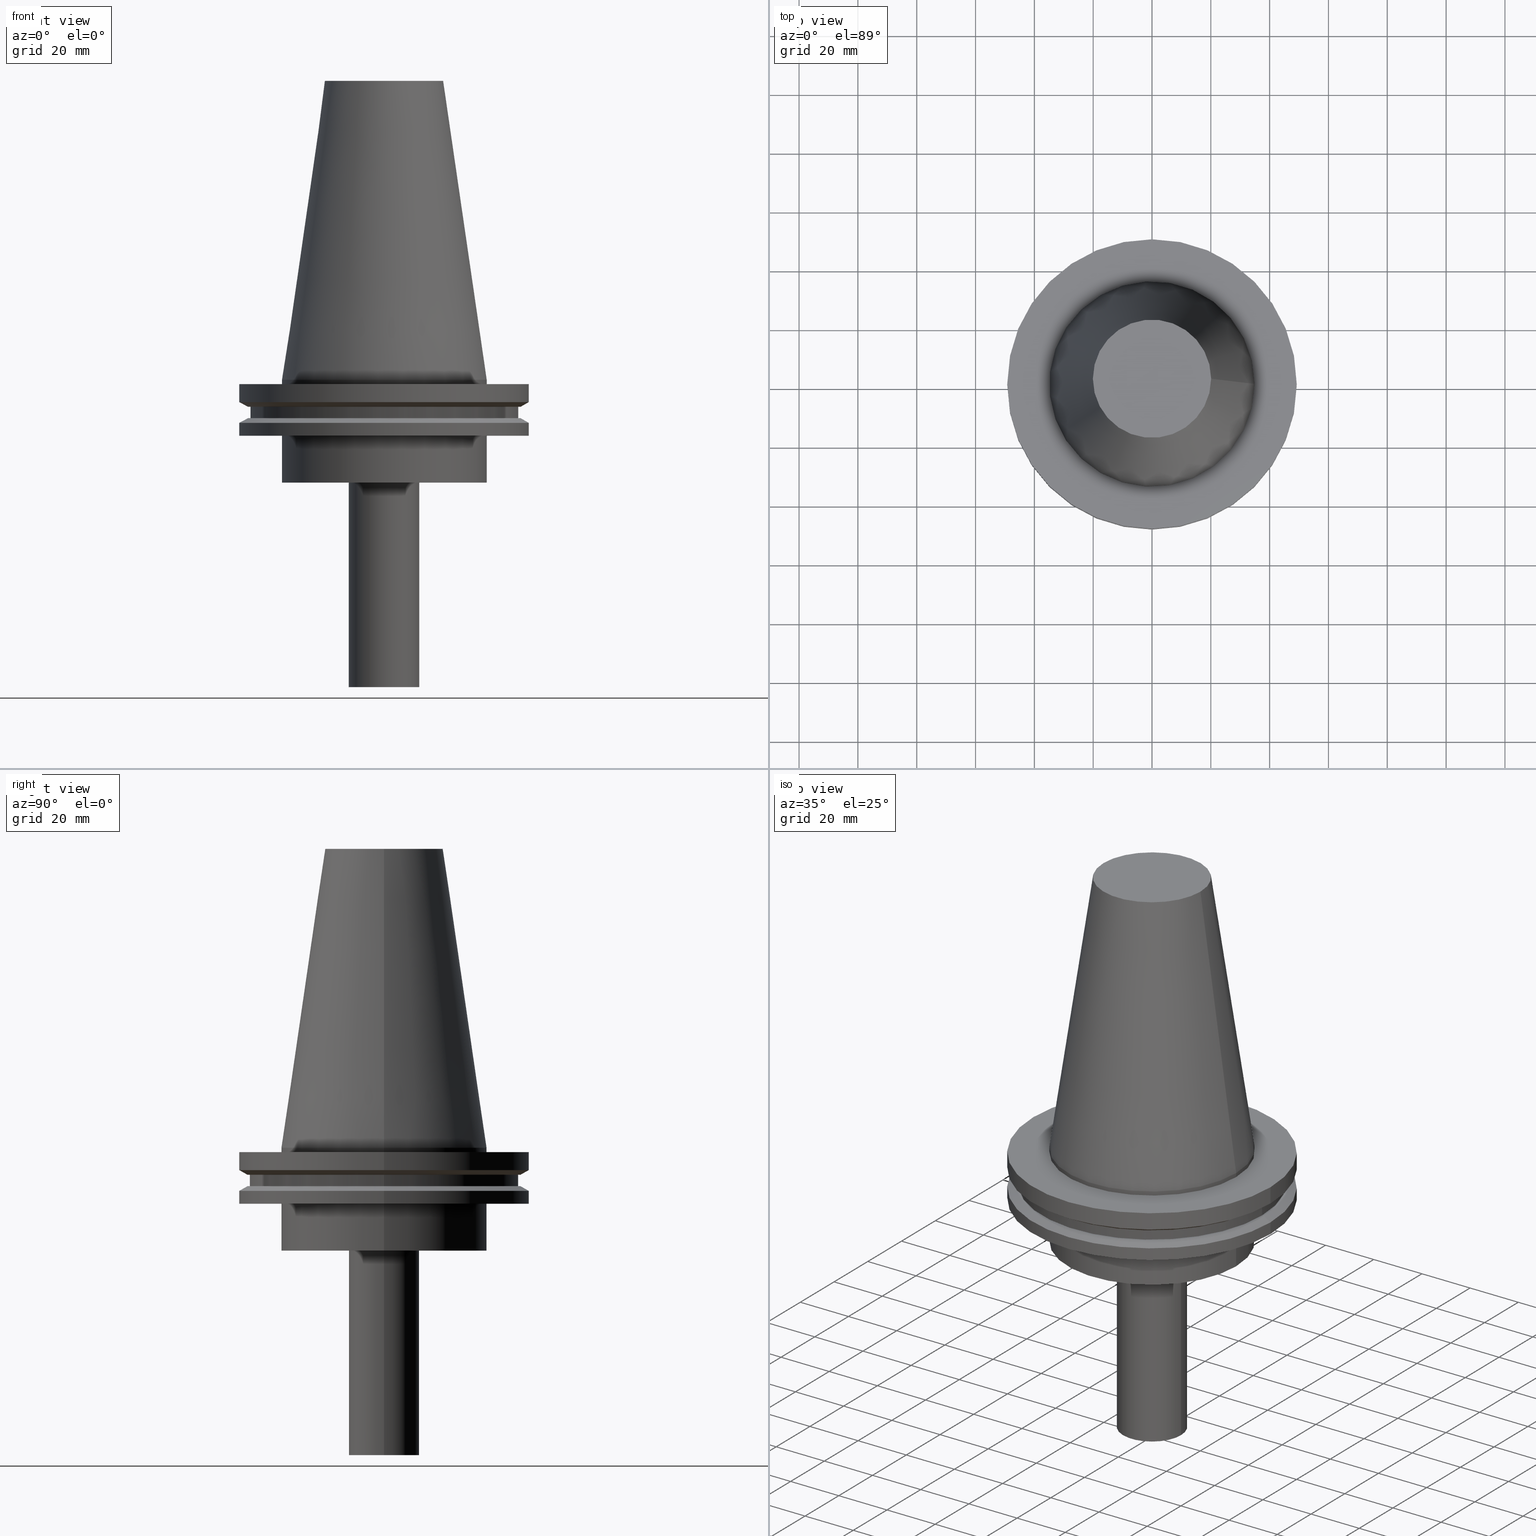
[diagram: canonical four-view strip — front | top / right | iso, engineering-drawing reading convention]
A machine part, canonical four-view strip (front | top / right | iso — engineering-drawing reading convention). The complete STEP part file that produces these views, byte-faithful:
ISO-10303-21;
HEADER;
FILE_DESCRIPTION (( 'STEP AP203' ),
    '1' );
FILE_NAME ('11.326.622.stp',
    '2022-03-09T14:49:42',
    ( '' ),
    ( '' ),
    'SwSTEP 2.0',
    'SolidWorks 2021',
    '' );
FILE_SCHEMA (( 'CONFIG_CONTROL_DESIGN' ));
ENDSEC;

DATA;
#1 = EDGE_LOOP ( 'NONE', ( #60 ) ) ;
#2 = ORIENTED_EDGE ( 'NONE', *, *, #318, .F. ) ;
#3 = DIRECTION ( 'NONE',  ( -0.000000000000000000, -0.000000000000000000, 1.000000000000000000 ) ) ;
#4 = CIRCLE ( 'NONE', #80, 34.92499999999999005 ) ;
#5 = COORDINATED_UNIVERSAL_TIME_OFFSET ( 6, 0, .BEHIND. ) ;
#6 = CARTESIAN_POINT ( 'NONE',  ( 0.000000000000000000, 0.000000000000000000, 101.5999999999999943 ) ) ;
#7 = CC_DESIGN_APPROVAL ( #176, ( #287 ) ) ;
#8 = PERSON_AND_ORGANIZATION ( #213, #145 ) ;
#9 = CYLINDRICAL_SURFACE ( 'NONE', #208, 49.21499999999998920 ) ;
#10 = CC_DESIGN_PERSON_AND_ORGANIZATION_ASSIGNMENT ( #8, #337, ( #371 ) ) ;
#11 = APPROVAL_STATUS ( 'not_yet_approved' ) ;
#12 = DIRECTION ( 'NONE',  ( -0.000000000000000000, -0.000000000000000000, 1.000000000000000000 ) ) ;
#13 = CIRCLE ( 'NONE', #75, 34.92499999999999005 ) ;
#14 = CARTESIAN_POINT ( 'NONE',  ( 0.000000000000000000, 0.000000000000000000, 0.000000000000000000 ) ) ;
#15 = FACE_BOUND ( 'NONE', #187, .T. ) ;
#16 = DIRECTION ( 'NONE',  ( -0.000000000000000000, -0.000000000000000000, 1.000000000000000000 ) ) ;
#17 = AXIS2_PLACEMENT_3D ( 'NONE', #352, #18, #86 ) ;
#18 = DIRECTION ( 'NONE',  ( 0.000000000000000000, -0.000000000000000000, 1.000000000000000000 ) ) ;
#19 = CARTESIAN_POINT ( 'NONE',  ( 0.000000000000000000, 46.43919780457007818, -9.204999999999998295 ) ) ;
#20 = CARTESIAN_POINT ( 'NONE',  ( 34.92499999999999005, 0.000000000000000000, 0.000000000000000000 ) ) ;
#21 = EDGE_LOOP ( 'NONE', ( #267 ) ) ;
#22 = VERTEX_POINT ( 'NONE', #298 ) ;
#23 = CIRCLE ( 'NONE', #167, 49.21499999999998920 ) ;
#24 = ORIENTED_EDGE ( 'NONE', *, *, #339, .F. ) ;
#25 = DESIGN_CONTEXT ( 'detailed design', #377, 'design' ) ;
#26 = CARTESIAN_POINT ( 'NONE',  ( 0.000000000000000000, 0.000000000000000000, 0.000000000000000000 ) ) ;
#27 = ORIENTED_EDGE ( 'NONE', *, *, #375, .F. ) ;
#28 = LOCAL_TIME ( 8, 49, 42.00000000000000000, #342 ) ;
#29 = DATE_AND_TIME ( #55, #360 ) ;
#30 = EDGE_LOOP ( 'NONE', ( #24 ) ) ;
#31 = COORDINATED_UNIVERSAL_TIME_OFFSET ( 6, 0, .BEHIND. ) ;
#32 = EDGE_LOOP ( 'NONE', ( #125 ) ) ;
#33 = AXIS2_PLACEMENT_3D ( 'NONE', #146, #144, #261 ) ;
#34 = FACE_OUTER_BOUND ( 'NONE', #300, .T. ) ;
#35 = ADVANCED_FACE ( 'NONE', ( #62, #238 ), #179, .F. ) ;
#36 = PERSON_AND_ORGANIZATION ( #213, #145 ) ;
#37 = FACE_BOUND ( 'NONE', #95, .T. ) ;
#38 = PERSON_AND_ORGANIZATION_ROLE ( 'design_supplier' ) ;
#39 = CIRCLE ( 'NONE', #383, 20.10819343178871321 ) ;
#40 = FACE_OUTER_BOUND ( 'NONE', #391, .T. ) ;
#41 = CIRCLE ( 'NONE', #241, 49.21500000000000341 ) ;
#42 = CIRCLE ( 'NONE', #59, 12.00000000000000000 ) ;
#43 = APPROVAL_ROLE ( '' ) ;
#44 = CARTESIAN_POINT ( 'NONE',  ( 0.000000000000000000, 0.000000000000000000, -35.00000000000000000 ) ) ;
#45 = EDGE_CURVE ( 'NONE', #147, #147, #4, .T. ) ;
#46 = CARTESIAN_POINT ( 'NONE',  ( 0.000000000000000000, 0.000000000000000000, 101.5999999999999943 ) ) ;
#47 = DIRECTION ( 'NONE',  ( 1.000000000000000000, 0.000000000000000000, 0.000000000000000000 ) ) ;
#48 = DIRECTION ( 'NONE',  ( -0.000000000000000000, -0.000000000000000000, 1.000000000000000000 ) ) ;
#49 = CARTESIAN_POINT ( 'NONE',  ( 0.000000000000000000, 0.000000000000000000, -19.04999999999999716 ) ) ;
#50 = EDGE_LOOP ( 'NONE', ( #350 ) ) ;
#51 = FACE_OUTER_BOUND ( 'NONE', #297, .T. ) ;
#52 = CC_DESIGN_PERSON_AND_ORGANIZATION_ASSIGNMENT ( #164, #38, ( #287 ) ) ;
#53 = FACE_BOUND ( 'NONE', #356, .T. ) ;
#54 = PRODUCT ( '11.326.622', '11.326.622', '', ( #236 ) ) ;
#55 = CALENDAR_DATE ( 2022, 9, 3 ) ;
#56 = ORIENTED_EDGE ( 'NONE', *, *, #361, .T. ) ;
#57 = AXIS2_PLACEMENT_3D ( 'NONE', #6, #220, #315 ) ;
#58 =( NAMED_UNIT ( * ) PLANE_ANGLE_UNIT ( ) SI_UNIT ( $, .RADIAN. ) );
#59 = AXIS2_PLACEMENT_3D ( 'NONE', #386, #118, #325 ) ;
#60 = ORIENTED_EDGE ( 'NONE', *, *, #361, .F. ) ;
#61 = APPROVAL_ROLE ( '' ) ;
#62 = FACE_OUTER_BOUND ( 'NONE', #30, .T. ) ;
#63 = LOCAL_TIME ( 8, 49, 42.00000000000000000, #5 ) ;
#64 = CARTESIAN_POINT ( 'NONE',  ( 45.64500000000000313, 0.000000000000000000, -9.204999999999991189 ) ) ;
#65 = DIRECTION ( 'NONE',  ( -0.000000000000000000, -0.000000000000000000, 1.000000000000000000 ) ) ;
#66 = VERTEX_POINT ( 'NONE', #64 ) ;
#67 = DIRECTION ( 'NONE',  ( 1.000000000000000000, 0.000000000000000000, 0.000000000000000000 ) ) ;
#68 = ADVANCED_FACE ( 'NONE', ( #34, #363 ), #97, .T. ) ;
#69 = DIRECTION ( 'NONE',  ( 1.000000000000000000, 0.000000000000000000, 0.000000000000000000 ) ) ;
#70 = CARTESIAN_POINT ( 'NONE',  ( 0.000000000000000000, 0.000000000000000000, -35.00000000000000000 ) ) ;
#71 = EDGE_CURVE ( 'NONE', #119, #119, #41, .T. ) ;
#72 = AXIS2_PLACEMENT_3D ( 'NONE', #253, #3, #136 ) ;
#73 = CYLINDRICAL_SURFACE ( 'NONE', #57, 45.64500000000000313 ) ;
#74 = CIRCLE ( 'NONE', #281, 34.92499999999999716 ) ;
#75 = AXIS2_PLACEMENT_3D ( 'NONE', #88, #264, #202 ) ;
#76 = DIRECTION ( 'NONE',  ( -0.000000000000000000, -0.000000000000000000, 1.000000000000000000 ) ) ;
#77 = FACE_OUTER_BOUND ( 'NONE', #21, .T. ) ;
#78 = CARTESIAN_POINT ( 'NONE',  ( 0.000000000000000000, 0.000000000000000000, -19.04999999999999716 ) ) ;
#79 = ADVANCED_FACE ( 'NONE', ( #279, #77 ), #196, .T. ) ;
#80 = AXIS2_PLACEMENT_3D ( 'NONE', #130, #183, #310 ) ;
#81 = AXIS2_PLACEMENT_3D ( 'NONE', #289, #348, #47 ) ;
#82 = CARTESIAN_POINT ( 'NONE',  ( 0.000000000000000000, 0.000000000000000000, -13.05499999999999794 ) ) ;
#83 = PLANE ( 'NONE',  #103 ) ;
#84 = ORIENTED_EDGE ( 'NONE', *, *, #292, .F. ) ;
#85 = CC_DESIGN_PERSON_AND_ORGANIZATION_ASSIGNMENT ( #273, #96, ( #239 ) ) ;
#86 = DIRECTION ( 'NONE',  ( 1.000000000000000000, 0.000000000000000000, 0.000000000000000000 ) ) ;
#87 = AXIS2_PLACEMENT_3D ( 'NONE', #107, #76, #194 ) ;
#88 = CARTESIAN_POINT ( 'NONE',  ( 0.000000000000000000, 0.000000000000000000, 0.000000000000000000 ) ) ;
#89 = APPLICATION_CONTEXT ( 'configuration controlled 3d designs of mechanical parts and assemblies' ) ;
#90 = DIRECTION ( 'NONE',  ( 0.000000000000000000, 0.000000000000000000, 1.000000000000000000 ) ) ;
#91 = EDGE_LOOP ( 'NONE', ( #93 ) ) ;
#92 = CARTESIAN_POINT ( 'NONE',  ( 49.21499999999998920, 0.000000000000000000, -19.04999999999999716 ) ) ;
#93 = ORIENTED_EDGE ( 'NONE', *, *, #375, .T. ) ;
#94 =( NAMED_UNIT ( * ) SI_UNIT ( $, .STERADIAN. ) SOLID_ANGLE_UNIT ( ) );
#95 = EDGE_LOOP ( 'NONE', ( #148 ) ) ;
#96 = PERSON_AND_ORGANIZATION_ROLE ( 'creator' ) ;
#97 = CYLINDRICAL_SURFACE ( 'NONE', #382, 12.00000000000000000 ) ;
#98 = EDGE_CURVE ( 'NONE', #234, #234, #74, .T. ) ;
#99 = APPROVAL_STATUS ( 'not_yet_approved' ) ;
#100 = EDGE_LOOP ( 'NONE', ( #2 ) ) ;
#101 = UNCERTAINTY_MEASURE_WITH_UNIT (LENGTH_MEASURE( 1.000000000000000082E-05 ), #121, 'distance_accuracy_value', 'NONE');
#102 = DIRECTION ( 'NONE',  ( -0.000000000000000000, -0.000000000000000000, 1.000000000000000000 ) ) ;
#103 = AXIS2_PLACEMENT_3D ( 'NONE', #19, #266, #142 ) ;
#104 = DATE_TIME_ROLE ( 'classification_date' ) ;
#105 = DIRECTION ( 'NONE',  ( 0.000000000000000000, 0.000000000000000000, -1.000000000000000000 ) ) ;
#106 = ADVANCED_FACE ( 'NONE', ( #285, #165 ), #9, .T. ) ;
#107 = CARTESIAN_POINT ( 'NONE',  ( 0.000000000000000000, 0.000000000000000000, -9.204999999999991189 ) ) ;
#108 = DIRECTION ( 'NONE',  ( 1.000000000000000000, 0.000000000000000000, 0.000000000000000000 ) ) ;
#109 = APPROVAL_DATE_TIME ( #366, #278 ) ;
#110 = DIRECTION ( 'NONE',  ( -0.000000000000000000, -0.000000000000000000, 1.000000000000000000 ) ) ;
#111 = CARTESIAN_POINT ( 'NONE',  ( 0.000000000000000000, 0.000000000000000000, -14.65761014474876944 ) ) ;
#112 = CARTESIAN_POINT ( 'NONE',  ( 0.000000000000000000, 0.000000000000000000, -14.65761014474876944 ) ) ;
#113 = ORIENTED_EDGE ( 'NONE', *, *, #182, .T. ) ;
#114 = CIRCLE ( 'NONE', #353, 49.21499999999999631 ) ;
#115 = CARTESIAN_POINT ( 'NONE',  ( 0.000000000000000000, 0.000000000000000000, -1.499999999999987566 ) ) ;
#116 = ADVANCED_FACE ( 'NONE', ( #222, #138 ), #316, .T. ) ;
#117 = ADVANCED_BREP_SHAPE_REPRESENTATION ( '11.326.622', ( #299, #314 ), #384 ) ;
#118 = DIRECTION ( 'NONE',  ( -0.000000000000000000, -0.000000000000000000, 1.000000000000000000 ) ) ;
#119 = VERTEX_POINT ( 'NONE', #378 ) ;
#120 = AXIS2_PLACEMENT_3D ( 'NONE', #14, #227, #323 ) ;
#121 =( LENGTH_UNIT ( ) NAMED_UNIT ( * ) SI_UNIT ( .MILLI., .METRE. ) );
#122 = CARTESIAN_POINT ( 'NONE',  ( 49.21499999999999631, 0.000000000000000000, -1.499999999999987566 ) ) ;
#123 = EDGE_LOOP ( 'NONE', ( #158 ) ) ;
#124 = EDGE_CURVE ( 'NONE', #326, #326, #262, .T. ) ;
#125 = ORIENTED_EDGE ( 'NONE', *, *, #379, .T. ) ;
#126 = AXIS2_PLACEMENT_3D ( 'NONE', #359, #210, #245 ) ;
#127 = CARTESIAN_POINT ( 'NONE',  ( 12.00000000000000000, 0.000000000000000000, -104.4999999999999858 ) ) ;
#128 = EDGE_LOOP ( 'NONE', ( #27 ) ) ;
#129 = DATE_TIME_ROLE ( 'creation_date' ) ;
#130 = CARTESIAN_POINT ( 'NONE',  ( 0.000000000000000000, 0.000000000000000000, -1.499999999999987566 ) ) ;
#131 = CARTESIAN_POINT ( 'NONE',  ( 0.000000000000000000, 0.000000000000000000, 101.5999999999999943 ) ) ;
#132 = DIRECTION ( 'NONE',  ( -1.000000000000000000, 0.000000000000000000, -0.000000000000000000 ) ) ;
#133 = EDGE_CURVE ( 'NONE', #141, #141, #39, .T. ) ;
#134 = CIRCLE ( 'NONE', #139, 45.64500000000000313 ) ;
#135 = FACE_BOUND ( 'NONE', #324, .T. ) ;
#136 = DIRECTION ( 'NONE',  ( 1.000000000000000000, 0.000000000000000000, 0.000000000000000000 ) ) ;
#137 = CALENDAR_DATE ( 2022, 9, 3 ) ;
#138 = FACE_OUTER_BOUND ( 'NONE', #123, .T. ) ;
#139 = AXIS2_PLACEMENT_3D ( 'NONE', #82, #171, #380 ) ;
#140 = ADVANCED_FACE ( 'NONE', ( #251 ), #280, .F. ) ;
#141 = VERTEX_POINT ( 'NONE', #258 ) ;
#142 = DIRECTION ( 'NONE',  ( 1.000000000000000000, 0.000000000000000000, 0.000000000000000000 ) ) ;
#143 = AXIS2_PLACEMENT_3D ( 'NONE', #370, #163, #248 ) ;
#144 = DIRECTION ( 'NONE',  ( -0.000000000000000000, -0.000000000000000000, 1.000000000000000000 ) ) ;
#145 = ORGANIZATION ( 'UNSPECIFIED', 'UNSPECIFIED', '' ) ;
#146 = CARTESIAN_POINT ( 'NONE',  ( 0.000000000000000000, 0.000000000000000000, -9.204999999999991189 ) ) ;
#147 = VERTEX_POINT ( 'NONE', #388 ) ;
#148 = ORIENTED_EDGE ( 'NONE', *, *, #45, .F. ) ;
#149 = EDGE_LOOP ( 'NONE', ( #333 ) ) ;
#150 = APPROVAL_STATUS ( 'not_yet_approved' ) ;
#151 = ORIENTED_EDGE ( 'NONE', *, *, #233, .T. ) ;
#152 = ADVANCED_FACE ( 'NONE', ( #135, #367 ), #255, .F. ) ;
#153 = APPROVAL_DATE_TIME ( #29, #198 ) ;
#154 = ORIENTED_EDGE ( 'NONE', *, *, #124, .T. ) ;
#155 = ADVANCED_FACE ( 'NONE', ( #40, #283 ), #73, .T. ) ;
#156 = VERTEX_POINT ( 'NONE', #390 ) ;
#157 = EDGE_LOOP ( 'NONE', ( #365 ) ) ;
#158 = ORIENTED_EDGE ( 'NONE', *, *, #71, .T. ) ;
#159 = PLANE ( 'NONE',  #216 ) ;
#160 = AXIS2_PLACEMENT_3D ( 'NONE', #70, #110, #108 ) ;
#161 = PERSON_AND_ORGANIZATION_ROLE ( 'creator' ) ;
#162 = DIRECTION ( 'NONE',  ( 1.000000000000000000, 0.000000000000000000, 0.000000000000000000 ) ) ;
#163 = DIRECTION ( 'NONE',  ( 0.000000000000000000, 0.000000000000000000, -1.000000000000000000 ) ) ;
#164 = PERSON_AND_ORGANIZATION ( #213, #145 ) ;
#165 = FACE_OUTER_BOUND ( 'NONE', #304, .T. ) ;
#166 = FACE_OUTER_BOUND ( 'NONE', #175, .T. ) ;
#167 = AXIS2_PLACEMENT_3D ( 'NONE', #78, #349, #170 ) ;
#168 = DIRECTION ( 'NONE',  ( 1.000000000000000000, 0.000000000000000000, 0.000000000000000000 ) ) ;
#169 = EDGE_CURVE ( 'NONE', #156, #156, #330, .T. ) ;
#170 = DIRECTION ( 'NONE',  ( 1.000000000000000000, 0.000000000000000000, 0.000000000000000000 ) ) ;
#171 = DIRECTION ( 'NONE',  ( -0.000000000000000000, -0.000000000000000000, 1.000000000000000000 ) ) ;
#172 = ORIENTED_EDGE ( 'NONE', *, *, #169, .F. ) ;
#173 = DIRECTION ( 'NONE',  ( 0.000000000000000000, 0.000000000000000000, -1.000000000000000000 ) ) ;
#174 = CARTESIAN_POINT ( 'NONE',  ( 12.00000000000000000, 0.000000000000000000, -35.00000000000000000 ) ) ;
#175 = EDGE_LOOP ( 'NONE', ( #276 ) ) ;
#176 = APPROVAL ( #99, 'UNSPECIFIED' ) ;
#177 = DATE_AND_TIME ( #275, #243 ) ;
#178 = ORIENTED_EDGE ( 'NONE', *, *, #277, .T. ) ;
#179 = PLANE ( 'NONE',  #126 ) ;
#180 = APPROVAL_PERSON_ORGANIZATION ( #221, #278, #43 ) ;
#181 = PERSON_AND_ORGANIZATION ( #213, #145 ) ;
#182 = EDGE_CURVE ( 'NONE', #66, #66, #291, .T. ) ;
#183 = DIRECTION ( 'NONE',  ( -0.000000000000000000, -0.000000000000000000, 1.000000000000000000 ) ) ;
#184 = DIRECTION ( 'NONE',  ( 1.000000000000000000, 0.000000000000000000, 0.000000000000000000 ) ) ;
#185 = APPROVAL_PERSON_ORGANIZATION ( #303, #198, #61 ) ;
#186 = CALENDAR_DATE ( 2022, 9, 3 ) ;
#187 = EDGE_LOOP ( 'NONE', ( #172 ) ) ;
#188 = CYLINDRICAL_SURFACE ( 'NONE', #268, 34.92499999999999716 ) ;
#189 = ADVANCED_FACE ( 'NONE', ( #166, #344 ), #229, .T. ) ;
#190 = DIRECTION ( 'NONE',  ( -0.000000000000000000, -0.000000000000000000, 1.000000000000000000 ) ) ;
#191 = AXIS2_PLACEMENT_3D ( 'NONE', #376, #105, #132 ) ;
#192 = DIRECTION ( 'NONE',  ( -0.000000000000000000, -0.000000000000000000, 1.000000000000000000 ) ) ;
#193 = CC_DESIGN_APPROVAL ( #198, ( #239 ) ) ;
#194 = DIRECTION ( 'NONE',  ( 1.000000000000000000, 0.000000000000000000, 0.000000000000000000 ) ) ;
#195 = CC_DESIGN_DATE_AND_TIME_ASSIGNMENT ( #177, #129, ( #239 ) ) ;
#196 = CYLINDRICAL_SURFACE ( 'NONE', #282, 34.92499999999999005 ) ;
#197 = DIRECTION ( 'NONE',  ( -1.000000000000000000, 0.000000000000000000, -0.000000000000000000 ) ) ;
#198 = APPROVAL ( #150, 'UNSPECIFIED' ) ;
#199 = FACE_OUTER_BOUND ( 'NONE', #157, .T. ) ;
#200 = DIRECTION ( 'NONE',  ( 1.000000000000000000, 0.000000000000000000, 0.000000000000000000 ) ) ;
#201 = ORIENTED_EDGE ( 'NONE', *, *, #339, .T. ) ;
#202 = DIRECTION ( 'NONE',  ( 1.000000000000000000, 0.000000000000000000, 0.000000000000000000 ) ) ;
#203 = CIRCLE ( 'NONE', #33, 46.43919780457007818 ) ;
#204 = ADVANCED_FACE ( 'NONE', ( #345, #288 ), #188, .T. ) ;
#205 = CARTESIAN_POINT ( 'NONE',  ( 34.92499999999999716, 0.000000000000000000, -35.00000000000000000 ) ) ;
#206 = EDGE_LOOP ( 'NONE', ( #395 ) ) ;
#207 = VERTEX_POINT ( 'NONE', #127 ) ;
#208 = AXIS2_PLACEMENT_3D ( 'NONE', #131, #343, #225 ) ;
#209 = ORIENTED_EDGE ( 'NONE', *, *, #182, .F. ) ;
#210 = DIRECTION ( 'NONE',  ( 0.000000000000000000, -0.000000000000000000, 1.000000000000000000 ) ) ;
#211 = DIRECTION ( 'NONE',  ( 1.000000000000000000, 0.000000000000000000, 0.000000000000000000 ) ) ;
#212 = CARTESIAN_POINT ( 'NONE',  ( 0.000000000000000000, 0.000000000000000000, 0.000000000000000000 ) ) ;
#213 = PERSON ( 'UNSPECIFIED', 'UNSPECIFIED', 'UNSPECIFIED', ('UNSPECIFIED'), ('UNSPECIFIED'), ('UNSPECIFIED') ) ;
#214 = APPROVAL_ROLE ( '' ) ;
#215 = ORIENTED_EDGE ( 'NONE', *, *, #124, .F. ) ;
#216 = AXIS2_PLACEMENT_3D ( 'NONE', #259, #385, #197 ) ;
#217 = DIRECTION ( 'NONE',  ( 1.000000000000000000, 0.000000000000000000, 0.000000000000000000 ) ) ;
#218 = ADVANCED_FACE ( 'NONE', ( #37, #311 ), #159, .F. ) ;
#219 = DATE_AND_TIME ( #372, #28 ) ;
#220 = DIRECTION ( 'NONE',  ( -0.000000000000000000, -0.000000000000000000, 1.000000000000000000 ) ) ;
#221 = PERSON_AND_ORGANIZATION ( #213, #145 ) ;
#222 = FACE_OUTER_BOUND ( 'NONE', #100, .T. ) ;
#223 = ADVANCED_FACE ( 'NONE', ( #199 ), #320, .F. ) ;
#224 = APPROVAL_DATE_TIME ( #219, #176 ) ;
#225 = DIRECTION ( 'NONE',  ( 1.000000000000000000, 0.000000000000000000, 0.000000000000000000 ) ) ;
#226 = DIRECTION ( 'NONE',  ( 1.000000000000000000, 0.000000000000000000, 0.000000000000000000 ) ) ;
#227 = DIRECTION ( 'NONE',  ( 0.000000000000000000, 0.000000000000000000, -1.000000000000000000 ) ) ;
#228 = PLANE ( 'NONE',  #81 ) ;
#229 = CONICAL_SURFACE ( 'NONE', #87, 46.43919780457007818, 1.047197551196575205 ) ;
#230 = FACE_OUTER_BOUND ( 'NONE', #91, .T. ) ;
#231 = LOCAL_TIME ( 8, 49, 42.00000000000000000, #252 ) ;
#232 = DIRECTION ( 'NONE',  ( 1.000000000000000000, 0.000000000000000000, 0.000000000000000000 ) ) ;
#233 = EDGE_CURVE ( 'NONE', #22, #22, #203, .T. ) ;
#234 = VERTEX_POINT ( 'NONE', #205 ) ;
#235 = ORIENTED_EDGE ( 'NONE', *, *, #98, .F. ) ;
#236 = MECHANICAL_CONTEXT ( 'NONE', #89, 'mechanical' ) ;
#237 = EDGE_LOOP ( 'NONE', ( #306 ) ) ;
#238 = FACE_BOUND ( 'NONE', #271, .T. ) ;
#239 = PRODUCT_DEFINITION ( 'UNKNOWN', '', #287, #25 ) ;
#240 = VERTEX_POINT ( 'NONE', #20 ) ;
#241 = AXIS2_PLACEMENT_3D ( 'NONE', #308, #335, #67 ) ;
#242 = ORIENTED_EDGE ( 'NONE', *, *, #292, .T. ) ;
#243 = LOCAL_TIME ( 8, 49, 42.00000000000000000, #31 ) ;
#244 = VERTEX_POINT ( 'NONE', #331 ) ;
#245 = DIRECTION ( 'NONE',  ( 1.000000000000000000, 0.000000000000000000, 0.000000000000000000 ) ) ;
#246 = COORDINATED_UNIVERSAL_TIME_OFFSET ( 6, 0, .BEHIND. ) ;
#247 = EDGE_LOOP ( 'NONE', ( #113 ) ) ;
#248 = DIRECTION ( 'NONE',  ( -1.000000000000000000, 0.000000000000000000, -0.000000000000000000 ) ) ;
#249 = CONICAL_SURFACE ( 'NONE', #120, 34.92499999999999005, 0.1448138465474119452 ) ;
#250 = SHAPE_DEFINITION_REPRESENTATION ( #355, #117 ) ;
#251 = FACE_OUTER_BOUND ( 'NONE', #206, .T. ) ;
#252 = COORDINATED_UNIVERSAL_TIME_OFFSET ( 6, 0, .BEHIND. ) ;
#253 = CARTESIAN_POINT ( 'NONE',  ( 0.000000000000000000, 0.000000000000000000, -13.05499999999999794 ) ) ;
#254 = ADVANCED_FACE ( 'NONE', ( #351, #321 ), #83, .F. ) ;
#255 = PLANE ( 'NONE',  #191 ) ;
#256 = CONICAL_SURFACE ( 'NONE', #309, 49.21499999999998920, 1.047197551196554333 ) ;
#257 = DIRECTION ( 'NONE',  ( 1.000000000000000000, 0.000000000000000000, 0.000000000000000000 ) ) ;
#258 = CARTESIAN_POINT ( 'NONE',  ( 20.10819343178871321, 0.000000000000000000, 101.5999999999999801 ) ) ;
#259 = CARTESIAN_POINT ( 'NONE',  ( 0.000000000000000000, 49.21499999999999631, -1.499999999999992895 ) ) ;
#260 = AXIS2_PLACEMENT_3D ( 'NONE', #341, #313, #162 ) ;
#261 = DIRECTION ( 'NONE',  ( 1.000000000000000000, 0.000000000000000000, 0.000000000000000000 ) ) ;
#262 = CIRCLE ( 'NONE', #160, 12.00000000000000000 ) ;
#263 = AXIS2_PLACEMENT_3D ( 'NONE', #49, #293, #232 ) ;
#264 = DIRECTION ( 'NONE',  ( -0.000000000000000000, -0.000000000000000000, 1.000000000000000000 ) ) ;
#265 = CC_DESIGN_PERSON_AND_ORGANIZATION_ASSIGNMENT ( #36, #161, ( #287 ) ) ;
#266 = DIRECTION ( 'NONE',  ( 0.000000000000000000, -0.000000000000000000, 1.000000000000000000 ) ) ;
#267 = ORIENTED_EDGE ( 'NONE', *, *, #45, .T. ) ;
#268 = AXIS2_PLACEMENT_3D ( 'NONE', #46, #102, #338 ) ;
#269 = VERTEX_POINT ( 'NONE', #122 ) ;
#270 = CC_DESIGN_PERSON_AND_ORGANIZATION_ASSIGNMENT ( #181, #362, ( #54 ) ) ;
#271 = EDGE_LOOP ( 'NONE', ( #56 ) ) ;
#272 = ORIENTED_EDGE ( 'NONE', *, *, #98, .T. ) ;
#273 = PERSON_AND_ORGANIZATION ( #213, #145 ) ;
#274 = ORIENTED_EDGE ( 'NONE', *, *, #277, .F. ) ;
#275 = CALENDAR_DATE ( 2022, 9, 3 ) ;
#276 = ORIENTED_EDGE ( 'NONE', *, *, #71, .F. ) ;
#277 = EDGE_CURVE ( 'NONE', #244, #244, #134, .T. ) ;
#278 = APPROVAL ( #11, 'UNSPECIFIED' ) ;
#279 = FACE_OUTER_BOUND ( 'NONE', #128, .T. ) ;
#280 = PLANE ( 'NONE',  #143 ) ;
#281 = AXIS2_PLACEMENT_3D ( 'NONE', #44, #190, #217 ) ;
#282 = AXIS2_PLACEMENT_3D ( 'NONE', #286, #12, #226 ) ;
#283 = FACE_OUTER_BOUND ( 'NONE', #354, .T. ) ;
#284 = CC_DESIGN_SECURITY_CLASSIFICATION ( #371, ( #287 ) ) ;
#285 = FACE_OUTER_BOUND ( 'NONE', #392, .T. ) ;
#286 = CARTESIAN_POINT ( 'NONE',  ( 0.000000000000000000, 0.000000000000000000, 101.5999999999999943 ) ) ;
#287 = PRODUCT_DEFINITION_FORMATION_WITH_SPECIFIED_SOURCE ( 'ANY', '', #54, .NOT_KNOWN. ) ;
#288 = FACE_OUTER_BOUND ( 'NONE', #389, .T. ) ;
#289 = CARTESIAN_POINT ( 'NONE',  ( 0.000000000000000000, 34.92499999999999716, -35.00000000000000000 ) ) ;
#290 = FACE_BOUND ( 'NONE', #358, .T. ) ;
#291 = CIRCLE ( 'NONE', #301, 45.64500000000000313 ) ;
#292 = EDGE_CURVE ( 'NONE', #305, #305, #319, .T. ) ;
#293 = DIRECTION ( 'NONE',  ( -0.000000000000000000, -0.000000000000000000, 1.000000000000000000 ) ) ;
#294 = ADVANCED_FACE ( 'NONE', ( #53, #347 ), #228, .F. ) ;
#295 = DIRECTION ( 'NONE',  ( -1.000000000000000000, 0.000000000000000000, 0.000000000000000000 ) ) ;
#296 = VERTEX_POINT ( 'NONE', #92 ) ;
#297 = EDGE_LOOP ( 'NONE', ( #242 ) ) ;
#298 = CARTESIAN_POINT ( 'NONE',  ( 46.43919780457007818, 0.000000000000000000, -9.204999999999991189 ) ) ;
#299 = MANIFOLD_SOLID_BREP ( 'CKB', #328 ) ;
#300 = EDGE_LOOP ( 'NONE', ( #215 ) ) ;
#301 = AXIS2_PLACEMENT_3D ( 'NONE', #374, #373, #69 ) ;
#302 = CIRCLE ( 'NONE', #263, 34.92499999999999716 ) ;
#303 = PERSON_AND_ORGANIZATION ( #213, #145 ) ;
#304 = EDGE_LOOP ( 'NONE', ( #201 ) ) ;
#305 = VERTEX_POINT ( 'NONE', #357 ) ;
#306 = ORIENTED_EDGE ( 'NONE', *, *, #233, .F. ) ;
#307 = CARTESIAN_POINT ( 'NONE',  ( 34.92499999999999716, 0.000000000000000000, -19.04999999999999716 ) ) ;
#308 = CARTESIAN_POINT ( 'NONE',  ( 0.000000000000000000, 0.000000000000000000, -7.602389855251287187 ) ) ;
#309 = AXIS2_PLACEMENT_3D ( 'NONE', #111, #173, #295 ) ;
#310 = DIRECTION ( 'NONE',  ( 1.000000000000000000, 0.000000000000000000, 0.000000000000000000 ) ) ;
#311 = FACE_OUTER_BOUND ( 'NONE', #50, .T. ) ;
#312 = PRODUCT_RELATED_PRODUCT_CATEGORY ( 'detail', '', ( #54 ) ) ;
#313 = DIRECTION ( 'NONE',  ( -0.000000000000000000, -0.000000000000000000, 1.000000000000000000 ) ) ;
#314 = AXIS2_PLACEMENT_3D ( 'NONE', #26, #90, #211 ) ;
#315 = DIRECTION ( 'NONE',  ( 1.000000000000000000, 0.000000000000000000, 0.000000000000000000 ) ) ;
#316 = CYLINDRICAL_SURFACE ( 'NONE', #260, 49.21499999999999631 ) ;
#317 = CARTESIAN_POINT ( 'NONE',  ( 0.000000000000000000, 0.000000000000000000, 101.5999999999999801 ) ) ;
#318 = EDGE_CURVE ( 'NONE', #269, #269, #114, .T. ) ;
#319 = CIRCLE ( 'NONE', #368, 49.21499999999998920 ) ;
#320 = PLANE ( 'NONE',  #17 ) ;
#321 = FACE_BOUND ( 'NONE', #247, .T. ) ;
#322 = CC_DESIGN_DATE_AND_TIME_ASSIGNMENT ( #340, #104, ( #371 ) ) ;
#323 = DIRECTION ( 'NONE',  ( -1.000000000000000000, 0.000000000000000000, 0.000000000000000000 ) ) ;
#324 = EDGE_LOOP ( 'NONE', ( #274 ) ) ;
#325 = DIRECTION ( 'NONE',  ( 1.000000000000000000, 0.000000000000000000, 0.000000000000000000 ) ) ;
#326 = VERTEX_POINT ( 'NONE', #174 ) ;
#327 = EDGE_LOOP ( 'NONE', ( #235 ) ) ;
#328 = CLOSED_SHELL ( 'NONE', ( #346, #140, #294, #204, #35, #106, #393, #152, #155, #254, #189, #116, #218, #79, #68, #223 ) ) ;
#329 = EDGE_LOOP ( 'NONE', ( #151 ) ) ;
#330 = CIRCLE ( 'NONE', #72, 46.43919780457007818 ) ;
#331 = CARTESIAN_POINT ( 'NONE',  ( 45.64500000000000313, 0.000000000000000000, -13.05499999999999794 ) ) ;
#332 = APPLICATION_PROTOCOL_DEFINITION ( 'international standard', 'config_control_design', 1994, #89 ) ;
#333 = ORIENTED_EDGE ( 'NONE', *, *, #169, .T. ) ;
#334 = VERTEX_POINT ( 'NONE', #307 ) ;
#335 = DIRECTION ( 'NONE',  ( -0.000000000000000000, -0.000000000000000000, 1.000000000000000000 ) ) ;
#336 = APPROVAL_PERSON_ORGANIZATION ( #364, #176, #214 ) ;
#337 = PERSON_AND_ORGANIZATION_ROLE ( 'classification_officer' ) ;
#338 = DIRECTION ( 'NONE',  ( 1.000000000000000000, 0.000000000000000000, 0.000000000000000000 ) ) ;
#339 = EDGE_CURVE ( 'NONE', #296, #296, #23, .T. ) ;
#340 = DATE_AND_TIME ( #137, #231 ) ;
#341 = CARTESIAN_POINT ( 'NONE',  ( 0.000000000000000000, 0.000000000000000000, 101.5999999999999943 ) ) ;
#342 = COORDINATED_UNIVERSAL_TIME_OFFSET ( 6, 0, .BEHIND. ) ;
#343 = DIRECTION ( 'NONE',  ( -0.000000000000000000, -0.000000000000000000, 1.000000000000000000 ) ) ;
#344 = FACE_BOUND ( 'NONE', #329, .T. ) ;
#345 = FACE_OUTER_BOUND ( 'NONE', #1, .T. ) ;
#346 = ADVANCED_FACE ( 'NONE', ( #290, #230 ), #249, .T. ) ;
#347 = FACE_OUTER_BOUND ( 'NONE', #327, .T. ) ;
#348 = DIRECTION ( 'NONE',  ( 0.000000000000000000, -0.000000000000000000, 1.000000000000000000 ) ) ;
#349 = DIRECTION ( 'NONE',  ( -0.000000000000000000, -0.000000000000000000, 1.000000000000000000 ) ) ;
#350 = ORIENTED_EDGE ( 'NONE', *, *, #318, .T. ) ;
#351 = FACE_OUTER_BOUND ( 'NONE', #237, .T. ) ;
#352 = CARTESIAN_POINT ( 'NONE',  ( 0.000000000000000000, 12.00000000000000000, -104.4999999999999858 ) ) ;
#353 = AXIS2_PLACEMENT_3D ( 'NONE', #115, #48, #200 ) ;
#354 = EDGE_LOOP ( 'NONE', ( #178 ) ) ;
#355 = PRODUCT_DEFINITION_SHAPE ( 'NONE', 'NONE',  #239 ) ;
#356 = EDGE_LOOP ( 'NONE', ( #154 ) ) ;
#357 = CARTESIAN_POINT ( 'NONE',  ( 49.21499999999998920, 0.000000000000000000, -14.65761014474876944 ) ) ;
#358 = EDGE_LOOP ( 'NONE', ( #381 ) ) ;
#359 = CARTESIAN_POINT ( 'NONE',  ( 0.000000000000000000, 49.21499999999998920, -19.04999999999999716 ) ) ;
#360 = LOCAL_TIME ( 8, 49, 42.00000000000000000, #246 ) ;
#361 = EDGE_CURVE ( 'NONE', #334, #334, #302, .T. ) ;
#362 = PERSON_AND_ORGANIZATION_ROLE ( 'design_owner' ) ;
#363 = FACE_OUTER_BOUND ( 'NONE', #32, .T. ) ;
#364 = PERSON_AND_ORGANIZATION ( #213, #145 ) ;
#365 = ORIENTED_EDGE ( 'NONE', *, *, #379, .F. ) ;
#366 = DATE_AND_TIME ( #186, #63 ) ;
#367 = FACE_OUTER_BOUND ( 'NONE', #149, .T. ) ;
#368 = AXIS2_PLACEMENT_3D ( 'NONE', #112, #16, #168 ) ;
#369 = SECURITY_CLASSIFICATION_LEVEL ( 'unclassified' ) ;
#370 = CARTESIAN_POINT ( 'NONE',  ( 0.000000000000000000, 20.10819343178871321, 101.5999999999999943 ) ) ;
#371 = SECURITY_CLASSIFICATION ( '', '', #369 ) ;
#372 = CALENDAR_DATE ( 2022, 9, 3 ) ;
#373 = DIRECTION ( 'NONE',  ( -0.000000000000000000, -0.000000000000000000, 1.000000000000000000 ) ) ;
#374 = CARTESIAN_POINT ( 'NONE',  ( 0.000000000000000000, 0.000000000000000000, -9.204999999999991189 ) ) ;
#375 = EDGE_CURVE ( 'NONE', #240, #240, #13, .T. ) ;
#376 = CARTESIAN_POINT ( 'NONE',  ( 0.000000000000000000, 45.64500000000000313, -13.05499999999999794 ) ) ;
#377 = APPLICATION_CONTEXT ( 'configuration controlled 3d designs of mechanical parts and assemblies' ) ;
#378 = CARTESIAN_POINT ( 'NONE',  ( 49.21500000000000341, 0.000000000000000000, -7.602389855251287187 ) ) ;
#379 = EDGE_CURVE ( 'NONE', #207, #207, #42, .T. ) ;
#380 = DIRECTION ( 'NONE',  ( 1.000000000000000000, 0.000000000000000000, 0.000000000000000000 ) ) ;
#381 = ORIENTED_EDGE ( 'NONE', *, *, #133, .F. ) ;
#382 = AXIS2_PLACEMENT_3D ( 'NONE', #212, #65, #184 ) ;
#383 = AXIS2_PLACEMENT_3D ( 'NONE', #317, #192, #257 ) ;
#384 =( GEOMETRIC_REPRESENTATION_CONTEXT ( 3 ) GLOBAL_UNCERTAINTY_ASSIGNED_CONTEXT ( ( #101 ) ) GLOBAL_UNIT_ASSIGNED_CONTEXT ( ( #121, #58, #94 ) ) REPRESENTATION_CONTEXT ( 'NONE', 'WORKASPACE' ) );
#385 = DIRECTION ( 'NONE',  ( 0.000000000000000000, 0.000000000000000000, -1.000000000000000000 ) ) ;
#386 = CARTESIAN_POINT ( 'NONE',  ( 0.000000000000000000, 0.000000000000000000, -104.4999999999999858 ) ) ;
#387 = CC_DESIGN_APPROVAL ( #278, ( #371 ) ) ;
#388 = CARTESIAN_POINT ( 'NONE',  ( 34.92499999999999005, 0.000000000000000000, -1.499999999999987566 ) ) ;
#389 = EDGE_LOOP ( 'NONE', ( #272 ) ) ;
#390 = CARTESIAN_POINT ( 'NONE',  ( 46.43919780457007818, 0.000000000000000000, -13.05499999999999794 ) ) ;
#391 = EDGE_LOOP ( 'NONE', ( #209 ) ) ;
#392 = EDGE_LOOP ( 'NONE', ( #84 ) ) ;
#393 = ADVANCED_FACE ( 'NONE', ( #15, #51 ), #256, .T. ) ;
#394 = APPLICATION_PROTOCOL_DEFINITION ( 'international standard', 'config_control_design', 1994, #377 ) ;
#395 = ORIENTED_EDGE ( 'NONE', *, *, #133, .T. ) ;
ENDSEC;
END-ISO-10303-21;
